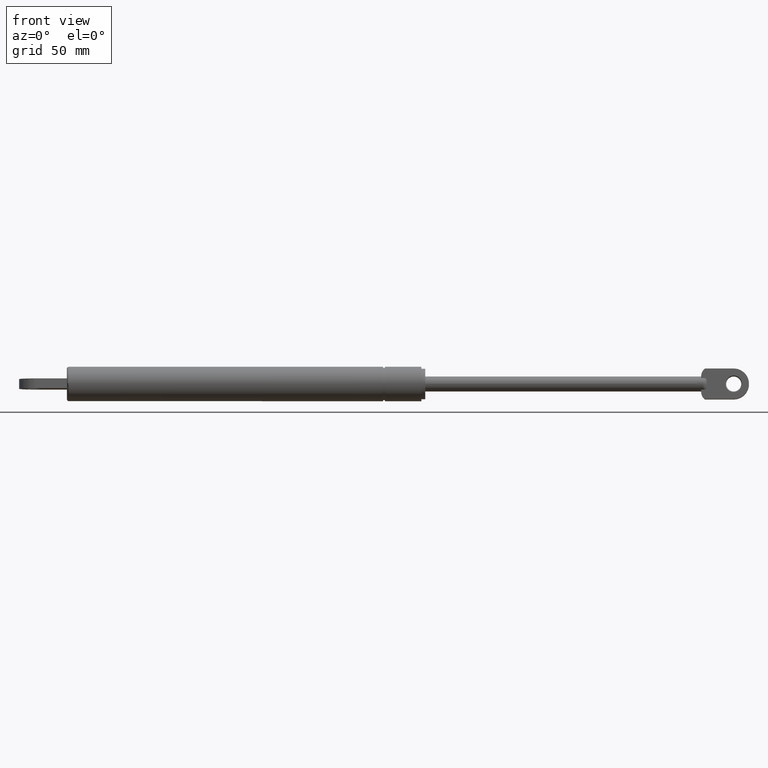
[diagram: clean part render]
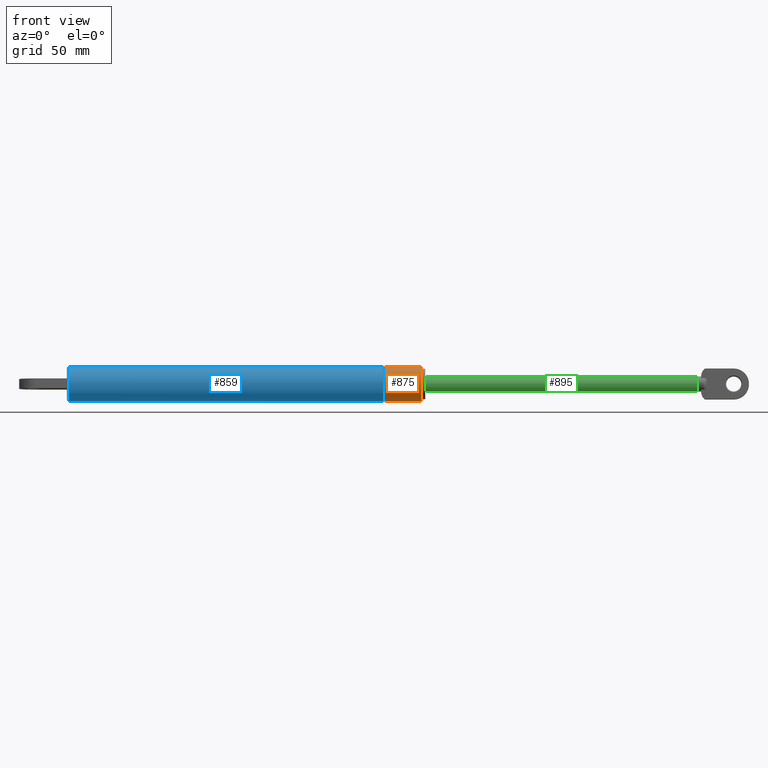
[diagram: same view with three faces highlighted in distinct colors, each labeled with its STEP entity id]
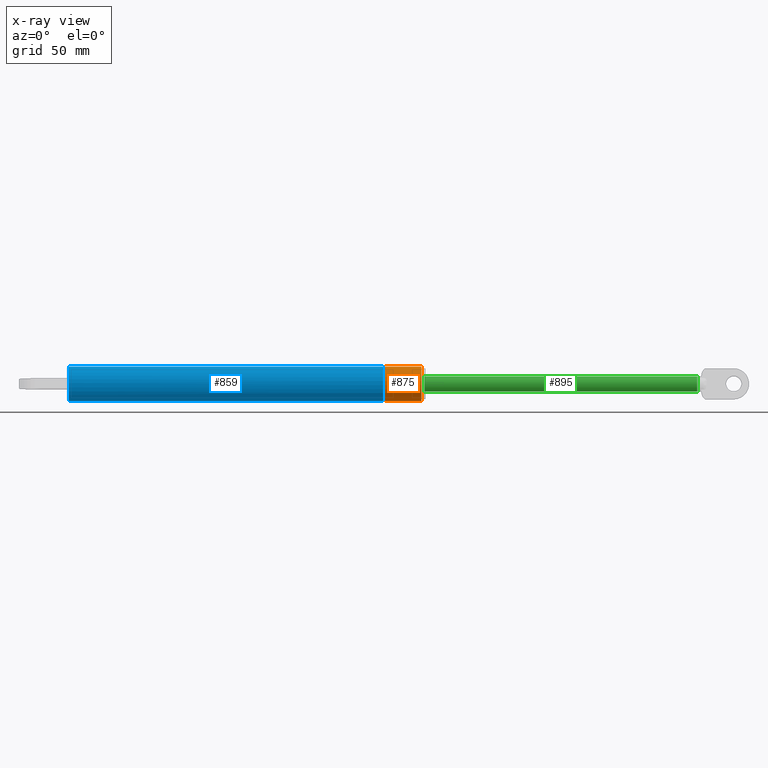
[diagram: x-ray of the same camera — body ghosted, the three highlighted faces saturated]
A machine part, front view with three faces highlighted in distinct colors.
The next image is the same camera in x-ray (body ghosted, the three faces saturated) — at least one of them is partly hidden behind the body in this view.
Their STEP definitions:

[orange] entity #875 — the highlighted cylindrical surface (bore or boss wall) has radius 9 mm, axis along (-1, 0, -0).
#61=CYLINDRICAL_SURFACE('',#955,8.99999999999997);
#189=FACE_BOUND('',#321,.T.);
#248=FACE_OUTER_BOUND('',#320,.T.);
#320=EDGE_LOOP('',(#695));
#321=EDGE_LOOP('',(#696));
#398=CIRCLE('',#954,9.);
#399=CIRCLE('',#956,8.99999999999993);
#463=VERTEX_POINT('',#1421);
#464=VERTEX_POINT('',#1424);
#554=EDGE_CURVE('',#463,#463,#398,.T.);
#555=EDGE_CURVE('',#464,#464,#399,.T.);
#695=ORIENTED_EDGE('',*,*,#555,.F.);
#696=ORIENTED_EDGE('',*,*,#554,.T.);
#875=ADVANCED_FACE('',(#248,#189),#61,.T.);
#954=AXIS2_PLACEMENT_3D('',#1422,#1117,#1118);
#955=AXIS2_PLACEMENT_3D('',#1423,#1119,#1120);
#956=AXIS2_PLACEMENT_3D('',#1425,#1121,#1122);
#1117=DIRECTION('center_axis',(1.,-1.60301873168865E-16,0.));
#1118=DIRECTION('ref_axis',(0.,1.,0.));
#1119=DIRECTION('center_axis',(1.,-1.60301873168865E-16,0.));
#1120=DIRECTION('ref_axis',(0.,1.,0.));
#1121=DIRECTION('center_axis',(1.,-1.60301873168865E-16,0.));
#1122=DIRECTION('ref_axis',(0.,1.,0.));
#1421=CARTESIAN_POINT('',(1.99999999999999,9.,0.));
#1422=CARTESIAN_POINT('Origin',(1.99999999999999,-3.20603746337728E-16,
0.));
#1423=CARTESIAN_POINT('Origin',(11.5,-1.84347154144194E-15,0.));
#1424=CARTESIAN_POINT('',(21.,8.99999999999993,0.));
#1425=CARTESIAN_POINT('Origin',(21.,-3.36633933654616E-15,0.));

[blue] entity #859 — the highlighted cylindrical surface (bore or boss wall) has radius 9 mm, axis along (-1, 0, -0).
#54=CYLINDRICAL_SURFACE('',#925,8.99999999999997);
#177=FACE_BOUND('',#293,.T.);
#232=FACE_OUTER_BOUND('',#292,.T.);
#292=EDGE_LOOP('',(#646));
#293=EDGE_LOOP('',(#647));
#382=CIRCLE('',#920,8.99999999999997);
#385=CIRCLE('',#926,8.99999999999994);
#437=VERTEX_POINT('',#1313);
#448=VERTEX_POINT('',#1372);
#522=EDGE_CURVE('',#437,#437,#382,.T.);
#535=EDGE_CURVE('',#448,#448,#385,.T.);
#646=ORIENTED_EDGE('',*,*,#535,.T.);
#647=ORIENTED_EDGE('',*,*,#522,.F.);
#859=ADVANCED_FACE('',(#232,#177),#54,.T.);
#920=AXIS2_PLACEMENT_3D('',#1314,#1041,#1042);
#925=AXIS2_PLACEMENT_3D('',#1371,#1053,#1054);
#926=AXIS2_PLACEMENT_3D('',#1373,#1055,#1056);
#1041=DIRECTION('center_axis',(1.,-1.60301873168865E-16,0.));
#1042=DIRECTION('ref_axis',(-1.5419764230905E-16,-1.,1.22464679914735E-16));
#1053=DIRECTION('center_axis',(1.,-1.60301873168865E-16,0.));
#1054=DIRECTION('ref_axis',(0.,1.,0.));
#1055=DIRECTION('center_axis',(1.,-1.60301873168865E-16,0.));
#1056=DIRECTION('ref_axis',(0.,1.,0.));
#1313=CARTESIAN_POINT('',(185.997326184093,8.99999999999994,0.));
#1314=CARTESIAN_POINT('Origin',(185.997326184093,-2.98157197917104E-14,
0.));
#1371=CARTESIAN_POINT('Origin',(104.498663092046,-1.67513314372971E-14,
0.));
#1372=CARTESIAN_POINT('',(22.,8.99999999999993,0.));
#1373=CARTESIAN_POINT('Origin',(22.,-3.52664120971502E-15,0.));

[green] entity #895 — the highlighted cylindrical surface (bore or boss wall) has radius 3.9 mm, axis along (-1, -0, -0).
#68=CYLINDRICAL_SURFACE('',#1000,3.9);
#203=FACE_BOUND('',#355,.T.);
#268=FACE_OUTER_BOUND('',#354,.T.);
#354=EDGE_LOOP('',(#757));
#355=EDGE_LOOP('',(#758));
#415=CIRCLE('',#988,3.9);
#422=CIRCLE('',#1001,3.9);
#484=VERTEX_POINT('',#1480);
#498=VERTEX_POINT('',#1540);
#575=EDGE_CURVE('',#484,#484,#415,.T.);
#595=EDGE_CURVE('',#498,#498,#422,.T.);
#757=ORIENTED_EDGE('',*,*,#595,.F.);
#758=ORIENTED_EDGE('',*,*,#575,.T.);
#895=ADVANCED_FACE('',(#268,#203),#68,.T.);
#988=AXIS2_PLACEMENT_3D('',#1481,#1189,#1190);
#1000=AXIS2_PLACEMENT_3D('',#1539,#1221,#1222);
#1001=AXIS2_PLACEMENT_3D('',#1541,#1223,#1224);
#1189=DIRECTION('center_axis',(-1.,0.,0.));
#1190=DIRECTION('ref_axis',(0.,0.,1.));
#1221=DIRECTION('center_axis',(-1.,0.,-1.36481125470763E-32));
#1222=DIRECTION('ref_axis',(0.,0.,1.));
#1223=DIRECTION('center_axis',(-1.,0.,-1.36481125470763E-32));
#1224=DIRECTION('ref_axis',(0.,0.,1.));
#1480=CARTESIAN_POINT('',(-2.,-4.77612251667468E-16,-3.9));
#1481=CARTESIAN_POINT('Origin',(-2.,0.,-2.72962250941527E-32));
#1539=CARTESIAN_POINT('Origin',(-72.25,0.,-9.86076131526265E-31));
#1540=CARTESIAN_POINT('',(-144.5,0.,3.9));
#1541=CARTESIAN_POINT('Origin',(-144.5,0.,-1.97215226305253E-30));